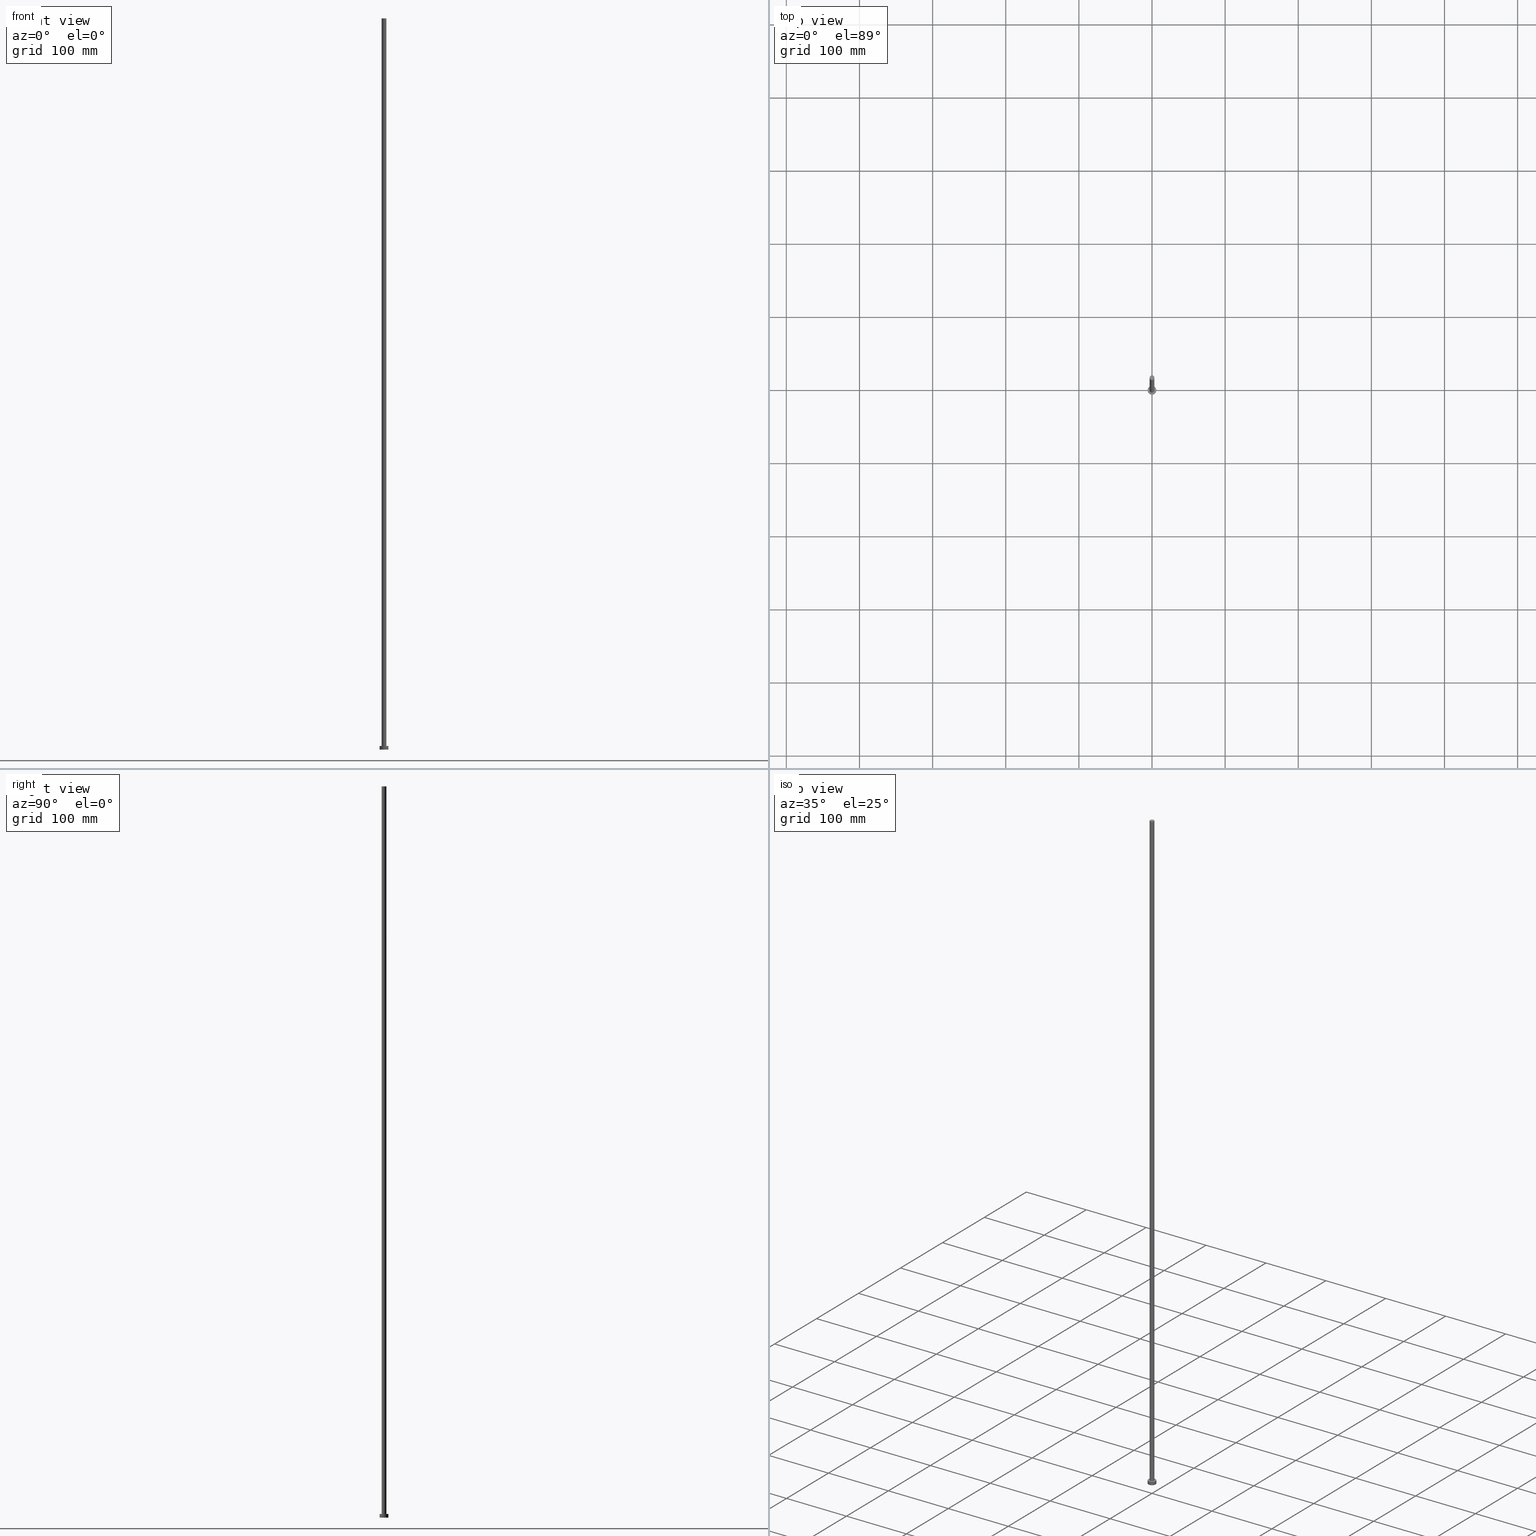
[diagram: canonical four-view strip — front | top / right | iso, engineering-drawing reading convention]
A machine part, canonical four-view strip (front | top / right | iso — engineering-drawing reading convention). The complete STEP part file that produces these views, byte-faithful:
ISO-10303-21;
HEADER;
FILE_DESCRIPTION (( 'STEP AP203' ),
    '1' );
FILE_NAME ('68aa.STEP',
    '2023-02-12T12:06:33',
    ( '' ),
    ( '' ),
    'SwSTEP 2.0',
    'SolidWorks 2019',
    '' );
FILE_SCHEMA (( 'CONFIG_CONTROL_DESIGN' ));
ENDSEC;

DATA;
#1 = DATE_TIME_ROLE ( 'classification_date' ) ;
#2 = CARTESIAN_POINT ( 'NONE',  ( 6.000000000000000888, 7.347880794884120722E-16, 5.000000000000000000 ) ) ;
#3 = DIRECTION ( 'NONE',  ( -0.000000000000000000, -0.000000000000000000, -1.000000000000000000 ) ) ;
#4 = LOCAL_TIME ( 13, 6, 33.00000000000000000, #201 ) ;
#5 = CC_DESIGN_PERSON_AND_ORGANIZATION_ASSIGNMENT ( #87, #42, ( #112 ) ) ;
#6 = AXIS2_PLACEMENT_3D ( 'NONE', #216, #17, #19 ) ;
#7 = CALENDAR_DATE ( 2023, 12, 2 ) ;
#8 = AXIS2_PLACEMENT_3D ( 'NONE', #211, #9, #97 ) ;
#9 = DIRECTION ( 'NONE',  ( 0.000000000000000000, 0.000000000000000000, 1.000000000000000000 ) ) ;
#10 = DIRECTION ( 'NONE',  ( 0.000000000000000000, 0.000000000000000000, 1.000000000000000000 ) ) ;
#11 = FACE_OUTER_BOUND ( 'NONE', #194, .T. ) ;
#12 = ORIENTED_EDGE ( 'NONE', *, *, #117, .T. ) ;
#13 = CIRCLE ( 'NONE', #45, 3.250000000000000444 ) ;
#14 = CARTESIAN_POINT ( 'NONE',  ( 0.000000000000000000, 0.000000000000000000, 5.000000000000000000 ) ) ;
#15 = DESIGN_CONTEXT ( 'detailed design', #46, 'design' ) ;
#16 = LINE ( 'NONE', #80, #226 ) ;
#17 = DIRECTION ( 'NONE',  ( 0.000000000000000000, 0.000000000000000000, 1.000000000000000000 ) ) ;
#18 = APPLICATION_PROTOCOL_DEFINITION ( 'international standard', 'config_control_design', 1994, #46 ) ;
#19 = DIRECTION ( 'NONE',  ( 1.000000000000000000, 0.000000000000000000, 0.000000000000000000 ) ) ;
#20 = PERSON_AND_ORGANIZATION ( #206, #244 ) ;
#21 = CARTESIAN_POINT ( 'NONE',  ( -3.250000000000000444, 0.000000000000000000, 1000.000000000000000 ) ) ;
#22 = PERSON_AND_ORGANIZATION_ROLE ( 'design_owner' ) ;
#23 = AXIS2_PLACEMENT_3D ( 'NONE', #255, #181, #62 ) ;
#24 =( GEOMETRIC_REPRESENTATION_CONTEXT ( 3 ) GLOBAL_UNCERTAINTY_ASSIGNED_CONTEXT ( ( #153 ) ) GLOBAL_UNIT_ASSIGNED_CONTEXT ( ( #241, #224, #222 ) ) REPRESENTATION_CONTEXT ( 'NONE', 'WORKASPACE' ) );
#25 = APPROVAL_DATE_TIME ( #83, #246 ) ;
#26 = ADVANCED_FACE ( 'NONE', ( #114 ), #76, .T. ) ;
#27 = SECURITY_CLASSIFICATION ( '', '', #144 ) ;
#28 = ORIENTED_EDGE ( 'NONE', *, *, #235, .F. ) ;
#29 = CIRCLE ( 'NONE', #123, 3.250000000000000444 ) ;
#30 = VERTEX_POINT ( 'NONE', #31 ) ;
#31 = CARTESIAN_POINT ( 'NONE',  ( -3.250000000000000444, 0.000000000000000000, 5.000000000000000000 ) ) ;
#32 = ORIENTED_EDGE ( 'NONE', *, *, #117, .F. ) ;
#33 = ORIENTED_EDGE ( 'NONE', *, *, #155, .F. ) ;
#34 = EDGE_LOOP ( 'NONE', ( #172, #231, #197, #47 ) ) ;
#35 = CARTESIAN_POINT ( 'NONE',  ( 6.000000000000000888, 7.347880794884120722E-16, 5.000000000000000000 ) ) ;
#36 = LINE ( 'NONE', #121, #173 ) ;
#37 = CARTESIAN_POINT ( 'NONE',  ( 3.250000000000000444, 3.980102097228897245E-16, 5.000000000000000000 ) ) ;
#38 = ADVANCED_FACE ( 'NONE', ( #11 ), #110, .T. ) ;
#39 = DATE_AND_TIME ( #140, #134 ) ;
#40 = FACE_BOUND ( 'NONE', #53, .T. ) ;
#41 = ORIENTED_EDGE ( 'NONE', *, *, #227, .T. ) ;
#42 = PERSON_AND_ORGANIZATION_ROLE ( 'creator' ) ;
#43 = LOCAL_TIME ( 13, 6, 33.00000000000000000, #63 ) ;
#44 = EDGE_CURVE ( 'NONE', #213, #151, #200, .T. ) ;
#45 = AXIS2_PLACEMENT_3D ( 'NONE', #78, #234, #177 ) ;
#46 = APPLICATION_CONTEXT ( 'configuration controlled 3d designs of mechanical parts and assemblies' ) ;
#47 = ORIENTED_EDGE ( 'NONE', *, *, #188, .T. ) ;
#48 = AXIS2_PLACEMENT_3D ( 'NONE', #154, #108, #247 ) ;
#49 = ORIENTED_EDGE ( 'NONE', *, *, #70, .F. ) ;
#50 = ORIENTED_EDGE ( 'NONE', *, *, #164, .F. ) ;
#51 = ORIENTED_EDGE ( 'NONE', *, *, #164, .T. ) ;
#52 = APPROVAL ( #122, 'NEUR�EN�' ) ;
#53 = EDGE_LOOP ( 'NONE', ( #171, #92 ) ) ;
#54 = CLOSED_SHELL ( 'NONE', ( #93, #254, #38, #210, #193, #137, #26 ) ) ;
#55 = AXIS2_PLACEMENT_3D ( 'NONE', #204, #119, #221 ) ;
#56 = VERTEX_POINT ( 'NONE', #192 ) ;
#57 = CC_DESIGN_SECURITY_CLASSIFICATION ( #27, ( #168 ) ) ;
#58 = FACE_OUTER_BOUND ( 'NONE', #74, .T. ) ;
#59 = CARTESIAN_POINT ( 'NONE',  ( 3.250000000000000444, 3.980102097228897245E-16, 1000.000000000000000 ) ) ;
#60 = CC_DESIGN_PERSON_AND_ORGANIZATION_ASSIGNMENT ( #163, #187, ( #168 ) ) ;
#61 = CARTESIAN_POINT ( 'NONE',  ( 0.000000000000000000, 0.000000000000000000, 0.000000000000000000 ) ) ;
#62 = DIRECTION ( 'NONE',  ( -1.000000000000000000, 0.000000000000000000, 0.000000000000000000 ) ) ;
#63 = COORDINATED_UNIVERSAL_TIME_OFFSET ( 1, 0, .AHEAD. ) ;
#64 = PRODUCT_DEFINITION_SHAPE ( 'NONE', 'NONE',  #112 ) ;
#65 = APPROVAL_ROLE ( '' ) ;
#66 = EDGE_CURVE ( 'NONE', #205, #248, #29, .T. ) ;
#67 = COORDINATED_UNIVERSAL_TIME_OFFSET ( 1, 0, .AHEAD. ) ;
#68 = CIRCLE ( 'NONE', #72, 6.000000000000000888 ) ;
#69 = PERSON_AND_ORGANIZATION ( #206, #244 ) ;
#70 = EDGE_CURVE ( 'NONE', #151, #213, #189, .T. ) ;
#71 = CARTESIAN_POINT ( 'NONE',  ( 0.000000000000000000, 0.000000000000000000, 1000.000000000000000 ) ) ;
#72 = AXIS2_PLACEMENT_3D ( 'NONE', #103, #218, #158 ) ;
#73 = AXIS2_PLACEMENT_3D ( 'NONE', #237, #143, #223 ) ;
#74 = EDGE_LOOP ( 'NONE', ( #229, #32 ) ) ;
#75 = ORIENTED_EDGE ( 'NONE', *, *, #44, .F. ) ;
#76 = PLANE ( 'NONE',  #48 ) ;
#77 = APPLICATION_CONTEXT ( 'configuration controlled 3d designs of mechanical parts and assemblies' ) ;
#78 = CARTESIAN_POINT ( 'NONE',  ( 0.000000000000000000, 0.000000000000000000, 1000.000000000000000 ) ) ;
#79 = CIRCLE ( 'NONE', #166, 3.250000000000000444 ) ;
#80 = CARTESIAN_POINT ( 'NONE',  ( 3.250000000000000444, 3.980102097228897245E-16, 1000.000000000000000 ) ) ;
#81 = MECHANICAL_CONTEXT ( 'NONE', #77, 'mechanical' ) ;
#82 = LINE ( 'NONE', #115, #186 ) ;
#83 = DATE_AND_TIME ( #7, #150 ) ;
#84 = CARTESIAN_POINT ( 'NONE',  ( -6.000000000000000888, 0.000000000000000000, 5.000000000000000000 ) ) ;
#85 = CC_DESIGN_APPROVAL ( #109, ( #27 ) ) ;
#86 = DIRECTION ( 'NONE',  ( 0.000000000000000000, 0.000000000000000000, 1.000000000000000000 ) ) ;
#87 = PERSON_AND_ORGANIZATION ( #206, #244 ) ;
#88 = PERSON_AND_ORGANIZATION ( #206, #244 ) ;
#89 = AXIS2_PLACEMENT_3D ( 'NONE', #195, #233, #135 ) ;
#90 = APPROVAL_PERSON_ORGANIZATION ( #88, #52, #125 ) ;
#91 = CC_DESIGN_PERSON_AND_ORGANIZATION_ASSIGNMENT ( #20, #145, ( #27 ) ) ;
#92 = ORIENTED_EDGE ( 'NONE', *, *, #101, .F. ) ;
#93 = ADVANCED_FACE ( 'NONE', ( #230 ), #131, .T. ) ;
#94 = CC_DESIGN_PERSON_AND_ORGANIZATION_ASSIGNMENT ( #69, #22, ( #184 ) ) ;
#95 = DIRECTION ( 'NONE',  ( 0.000000000000000000, 0.000000000000000000, 1.000000000000000000 ) ) ;
#96 = EDGE_LOOP ( 'NONE', ( #113, #136 ) ) ;
#97 = DIRECTION ( 'NONE',  ( 1.000000000000000000, 0.000000000000000000, 0.000000000000000000 ) ) ;
#98 = ORIENTED_EDGE ( 'NONE', *, *, #66, .T. ) ;
#99 = LINE ( 'NONE', #2, #215 ) ;
#100 = DIRECTION ( 'NONE',  ( -0.000000000000000000, -0.000000000000000000, -1.000000000000000000 ) ) ;
#101 = EDGE_CURVE ( 'NONE', #147, #30, #79, .T. ) ;
#102 = CALENDAR_DATE ( 2023, 12, 2 ) ;
#103 = CARTESIAN_POINT ( 'NONE',  ( 0.000000000000000000, 0.000000000000000000, 0.000000000000000000 ) ) ;
#104 = DATE_AND_TIME ( #102, #196 ) ;
#105 = FACE_OUTER_BOUND ( 'NONE', #96, .T. ) ;
#106 = APPLICATION_PROTOCOL_DEFINITION ( 'international standard', 'config_control_design', 1994, #77 ) ;
#107 = DIRECTION ( 'NONE',  ( 1.000000000000000000, 0.000000000000000000, 0.000000000000000000 ) ) ;
#108 = DIRECTION ( 'NONE',  ( 0.000000000000000000, 0.000000000000000000, 1.000000000000000000 ) ) ;
#109 = APPROVAL ( #159, 'NEUR�EN�' ) ;
#110 = CYLINDRICAL_SURFACE ( 'NONE', #89, 6.000000000000000888 ) ;
#111 = ORIENTED_EDGE ( 'NONE', *, *, #101, .T. ) ;
#112 = PRODUCT_DEFINITION ( 'NEZN�M�', '', #168, #15 ) ;
#113 = ORIENTED_EDGE ( 'NONE', *, *, #70, .T. ) ;
#114 = FACE_OUTER_BOUND ( 'NONE', #190, .T. ) ;
#115 = CARTESIAN_POINT ( 'NONE',  ( -6.000000000000000888, 0.000000000000000000, 5.000000000000000000 ) ) ;
#116 = CARTESIAN_POINT ( 'NONE',  ( 6.000000000000000888, 7.347880794884120722E-16, 0.000000000000000000 ) ) ;
#117 = EDGE_CURVE ( 'NONE', #170, #56, #68, .T. ) ;
#118 = ORIENTED_EDGE ( 'NONE', *, *, #228, .T. ) ;
#119 = DIRECTION ( 'NONE',  ( 0.000000000000000000, 0.000000000000000000, 1.000000000000000000 ) ) ;
#120 = COORDINATED_UNIVERSAL_TIME_OFFSET ( 1, 0, .AHEAD. ) ;
#121 = CARTESIAN_POINT ( 'NONE',  ( -3.250000000000000444, 0.000000000000000000, 1000.000000000000000 ) ) ;
#122 = APPROVAL_STATUS ( 'not_yet_approved' ) ;
#123 = AXIS2_PLACEMENT_3D ( 'NONE', #71, #10, #149 ) ;
#124 = AXIS2_PLACEMENT_3D ( 'NONE', #199, #202, #160 ) ;
#125 = APPROVAL_ROLE ( '' ) ;
#126 = APPROVAL_DATE_TIME ( #129, #109 ) ;
#127 = CALENDAR_DATE ( 2023, 12, 2 ) ;
#128 = AXIS2_PLACEMENT_3D ( 'NONE', #61, #86, #107 ) ;
#129 = DATE_AND_TIME ( #127, #43 ) ;
#130 = ORIENTED_EDGE ( 'NONE', *, *, #235, .T. ) ;
#131 = CYLINDRICAL_SURFACE ( 'NONE', #178, 3.250000000000000444 ) ;
#132 = EDGE_LOOP ( 'NONE', ( #50, #175, #111, #33 ) ) ;
#133 = DIRECTION ( 'NONE',  ( 1.000000000000000000, 0.000000000000000000, 0.000000000000000000 ) ) ;
#134 = LOCAL_TIME ( 13, 6, 33.00000000000000000, #67 ) ;
#135 = DIRECTION ( 'NONE',  ( -1.000000000000000000, 0.000000000000000000, 0.000000000000000000 ) ) ;
#136 = ORIENTED_EDGE ( 'NONE', *, *, #44, .T. ) ;
#137 = ADVANCED_FACE ( 'NONE', ( #156 ), #217, .T. ) ;
#138 = PLANE ( 'NONE',  #124 ) ;
#139 = FACE_OUTER_BOUND ( 'NONE', #252, .T. ) ;
#140 = CALENDAR_DATE ( 2023, 12, 2 ) ;
#141 = DIRECTION ( 'NONE',  ( -0.000000000000000000, -0.000000000000000000, -1.000000000000000000 ) ) ;
#142 = CC_DESIGN_APPROVAL ( #52, ( #168 ) ) ;
#143 = DIRECTION ( 'NONE',  ( -0.000000000000000000, -0.000000000000000000, -1.000000000000000000 ) ) ;
#144 = SECURITY_CLASSIFICATION_LEVEL ( 'unclassified' ) ;
#145 = PERSON_AND_ORGANIZATION_ROLE ( 'classification_officer' ) ;
#146 = EDGE_CURVE ( 'NONE', #248, #147, #16, .T. ) ;
#147 = VERTEX_POINT ( 'NONE', #37 ) ;
#148 = PRODUCT_RELATED_PRODUCT_CATEGORY ( 'detail', '', ( #184 ) ) ;
#149 = DIRECTION ( 'NONE',  ( 1.000000000000000000, 0.000000000000000000, 0.000000000000000000 ) ) ;
#150 = LOCAL_TIME ( 13, 6, 33.00000000000000000, #120 ) ;
#151 = VERTEX_POINT ( 'NONE', #84 ) ;
#152 = CARTESIAN_POINT ( 'NONE',  ( 0.000000000000000000, 0.000000000000000000, 5.000000000000000000 ) ) ;
#153 = UNCERTAINTY_MEASURE_WITH_UNIT (LENGTH_MEASURE( 1.000000000000000082E-05 ), #241, 'distance_accuracy_value', 'NONE');
#154 = CARTESIAN_POINT ( 'NONE',  ( 0.000000000000000000, 0.000000000000000000, 1000.000000000000000 ) ) ;
#155 = EDGE_CURVE ( 'NONE', #205, #30, #36, .T. ) ;
#156 = FACE_OUTER_BOUND ( 'NONE', #34, .T. ) ;
#157 = CARTESIAN_POINT ( 'NONE',  ( 0.000000000000000000, 0.000000000000000000, 5.000000000000000000 ) ) ;
#158 = DIRECTION ( 'NONE',  ( 1.000000000000000000, 0.000000000000000000, 0.000000000000000000 ) ) ;
#159 = APPROVAL_STATUS ( 'not_yet_approved' ) ;
#160 = DIRECTION ( 'NONE',  ( 1.000000000000000000, 0.000000000000000000, -0.000000000000000000 ) ) ;
#161 = PERSON_AND_ORGANIZATION ( #206, #244 ) ;
#162 = ADVANCED_BREP_SHAPE_REPRESENTATION ( '68aa', ( #220, #128 ), #24 ) ;
#163 = PERSON_AND_ORGANIZATION ( #206, #244 ) ;
#164 = EDGE_CURVE ( 'NONE', #248, #205, #13, .T. ) ;
#165 = DATE_AND_TIME ( #207, #4 ) ;
#166 = AXIS2_PLACEMENT_3D ( 'NONE', #152, #232, #214 ) ;
#167 = CIRCLE ( 'NONE', #55, 3.250000000000000444 ) ;
#168 = PRODUCT_DEFINITION_FORMATION_WITH_SPECIFIED_SOURCE ( 'LIBOVOLN�', '', #184, .NOT_KNOWN. ) ;
#169 = SHAPE_DEFINITION_REPRESENTATION ( #64, #162 ) ;
#170 = VERTEX_POINT ( 'NONE', #116 ) ;
#171 = ORIENTED_EDGE ( 'NONE', *, *, #188, .F. ) ;
#172 = ORIENTED_EDGE ( 'NONE', *, *, #146, .F. ) ;
#173 = VECTOR ( 'NONE', #3, 1000.000000000000000 ) ;
#174 = DIRECTION ( 'NONE',  ( -0.000000000000000000, -0.000000000000000000, -1.000000000000000000 ) ) ;
#175 = ORIENTED_EDGE ( 'NONE', *, *, #146, .T. ) ;
#176 = CC_DESIGN_DATE_AND_TIME_ASSIGNMENT ( #104, #1, ( #27 ) ) ;
#177 = DIRECTION ( 'NONE',  ( 1.000000000000000000, 0.000000000000000000, 0.000000000000000000 ) ) ;
#178 = AXIS2_PLACEMENT_3D ( 'NONE', #212, #174, #251 ) ;
#179 = CYLINDRICAL_SURFACE ( 'NONE', #73, 6.000000000000000888 ) ;
#180 = DATE_TIME_ROLE ( 'creation_date' ) ;
#181 = DIRECTION ( 'NONE',  ( -0.000000000000000000, -0.000000000000000000, -1.000000000000000000 ) ) ;
#182 = PERSON_AND_ORGANIZATION ( #206, #244 ) ;
#183 = PLANE ( 'NONE',  #243 ) ;
#184 = PRODUCT ( '68aa', '68aa', '', ( #81 ) ) ;
#185 = APPROVAL_STATUS ( 'not_yet_approved' ) ;
#186 = VECTOR ( 'NONE', #198, 1000.000000000000000 ) ;
#187 = PERSON_AND_ORGANIZATION_ROLE ( 'creator' ) ;
#188 = EDGE_CURVE ( 'NONE', #30, #147, #167, .T. ) ;
#189 = CIRCLE ( 'NONE', #191, 6.000000000000000888 ) ;
#190 = EDGE_LOOP ( 'NONE', ( #98, #51 ) ) ;
#191 = AXIS2_PLACEMENT_3D ( 'NONE', #14, #95, #133 ) ;
#192 = CARTESIAN_POINT ( 'NONE',  ( -6.000000000000000888, 0.000000000000000000, 0.000000000000000000 ) ) ;
#193 = ADVANCED_FACE ( 'NONE', ( #58 ), #138, .F. ) ;
#194 = EDGE_LOOP ( 'NONE', ( #28, #49, #118, #41 ) ) ;
#195 = CARTESIAN_POINT ( 'NONE',  ( 0.000000000000000000, 0.000000000000000000, 5.000000000000000000 ) ) ;
#196 = LOCAL_TIME ( 13, 6, 33.00000000000000000, #208 ) ;
#197 = ORIENTED_EDGE ( 'NONE', *, *, #155, .T. ) ;
#198 = DIRECTION ( 'NONE',  ( -0.000000000000000000, -0.000000000000000000, -1.000000000000000000 ) ) ;
#199 = CARTESIAN_POINT ( 'NONE',  ( 0.000000000000000000, 0.000000000000000000, 0.000000000000000000 ) ) ;
#200 = CIRCLE ( 'NONE', #8, 6.000000000000000888 ) ;
#201 = COORDINATED_UNIVERSAL_TIME_OFFSET ( 1, 0, .AHEAD. ) ;
#202 = DIRECTION ( 'NONE',  ( 0.000000000000000000, 0.000000000000000000, 1.000000000000000000 ) ) ;
#203 = PERSON_AND_ORGANIZATION ( #206, #244 ) ;
#204 = CARTESIAN_POINT ( 'NONE',  ( 0.000000000000000000, 0.000000000000000000, 5.000000000000000000 ) ) ;
#205 = VERTEX_POINT ( 'NONE', #21 ) ;
#206 = PERSON ( 'NEUR�EN�', 'NEUR�EN�', 'NEUR�EN�', ('NEUR�EN�'), ('NEUR�EN�'), ('NEUR�EN�') ) ;
#207 = CALENDAR_DATE ( 2023, 12, 2 ) ;
#208 = COORDINATED_UNIVERSAL_TIME_OFFSET ( 1, 0, .AHEAD. ) ;
#209 = CC_DESIGN_APPROVAL ( #246, ( #112 ) ) ;
#210 = ADVANCED_FACE ( 'NONE', ( #40, #105 ), #183, .T. ) ;
#211 = CARTESIAN_POINT ( 'NONE',  ( 0.000000000000000000, 0.000000000000000000, 5.000000000000000000 ) ) ;
#212 = CARTESIAN_POINT ( 'NONE',  ( 0.000000000000000000, 0.000000000000000000, 1000.000000000000000 ) ) ;
#213 = VERTEX_POINT ( 'NONE', #35 ) ;
#214 = DIRECTION ( 'NONE',  ( 1.000000000000000000, 0.000000000000000000, 0.000000000000000000 ) ) ;
#215 = VECTOR ( 'NONE', #100, 1000.000000000000000 ) ;
#216 = CARTESIAN_POINT ( 'NONE',  ( 0.000000000000000000, 0.000000000000000000, 0.000000000000000000 ) ) ;
#217 = CYLINDRICAL_SURFACE ( 'NONE', #23, 3.250000000000000444 ) ;
#218 = DIRECTION ( 'NONE',  ( 0.000000000000000000, 0.000000000000000000, 1.000000000000000000 ) ) ;
#219 = APPROVAL_DATE_TIME ( #165, #52 ) ;
#220 = MANIFOLD_SOLID_BREP ( 'P�idat vysunut�m3', #54 ) ;
#221 = DIRECTION ( 'NONE',  ( 1.000000000000000000, 0.000000000000000000, 0.000000000000000000 ) ) ;
#222 =( NAMED_UNIT ( * ) SI_UNIT ( $, .STERADIAN. ) SOLID_ANGLE_UNIT ( ) );
#223 = DIRECTION ( 'NONE',  ( -1.000000000000000000, 0.000000000000000000, 0.000000000000000000 ) ) ;
#224 =( NAMED_UNIT ( * ) PLANE_ANGLE_UNIT ( ) SI_UNIT ( $, .RADIAN. ) );
#225 = CC_DESIGN_PERSON_AND_ORGANIZATION_ASSIGNMENT ( #203, #242, ( #168 ) ) ;
#226 = VECTOR ( 'NONE', #141, 1000.000000000000000 ) ;
#227 = EDGE_CURVE ( 'NONE', #56, #170, #239, .T. ) ;
#228 = EDGE_CURVE ( 'NONE', #151, #56, #82, .T. ) ;
#229 = ORIENTED_EDGE ( 'NONE', *, *, #227, .F. ) ;
#230 = FACE_OUTER_BOUND ( 'NONE', #132, .T. ) ;
#231 = ORIENTED_EDGE ( 'NONE', *, *, #66, .F. ) ;
#232 = DIRECTION ( 'NONE',  ( 0.000000000000000000, 0.000000000000000000, 1.000000000000000000 ) ) ;
#233 = DIRECTION ( 'NONE',  ( -0.000000000000000000, -0.000000000000000000, -1.000000000000000000 ) ) ;
#234 = DIRECTION ( 'NONE',  ( 0.000000000000000000, 0.000000000000000000, 1.000000000000000000 ) ) ;
#235 = EDGE_CURVE ( 'NONE', #213, #170, #99, .T. ) ;
#236 = DIRECTION ( 'NONE',  ( 0.000000000000000000, 0.000000000000000000, 1.000000000000000000 ) ) ;
#237 = CARTESIAN_POINT ( 'NONE',  ( 0.000000000000000000, 0.000000000000000000, 5.000000000000000000 ) ) ;
#238 = APPROVAL_ROLE ( '' ) ;
#239 = CIRCLE ( 'NONE', #6, 6.000000000000000888 ) ;
#240 = CC_DESIGN_DATE_AND_TIME_ASSIGNMENT ( #39, #180, ( #112 ) ) ;
#241 =( LENGTH_UNIT ( ) NAMED_UNIT ( * ) SI_UNIT ( .MILLI., .METRE. ) );
#242 = PERSON_AND_ORGANIZATION_ROLE ( 'design_supplier' ) ;
#243 = AXIS2_PLACEMENT_3D ( 'NONE', #157, #236, #253 ) ;
#244 = ORGANIZATION ( 'NEUR�EN�', 'NEUR�EN�', '' ) ;
#245 = APPROVAL_PERSON_ORGANIZATION ( #182, #109, #238 ) ;
#246 = APPROVAL ( #185, 'NEUR�EN�' ) ;
#247 = DIRECTION ( 'NONE',  ( 1.000000000000000000, 0.000000000000000000, -0.000000000000000000 ) ) ;
#248 = VERTEX_POINT ( 'NONE', #59 ) ;
#249 = ORIENTED_EDGE ( 'NONE', *, *, #228, .F. ) ;
#250 = APPROVAL_PERSON_ORGANIZATION ( #161, #246, #65 ) ;
#251 = DIRECTION ( 'NONE',  ( -1.000000000000000000, 0.000000000000000000, 0.000000000000000000 ) ) ;
#252 = EDGE_LOOP ( 'NONE', ( #75, #130, #12, #249 ) ) ;
#253 = DIRECTION ( 'NONE',  ( 1.000000000000000000, 0.000000000000000000, -0.000000000000000000 ) ) ;
#254 = ADVANCED_FACE ( 'NONE', ( #139 ), #179, .T. ) ;
#255 = CARTESIAN_POINT ( 'NONE',  ( 0.000000000000000000, 0.000000000000000000, 1000.000000000000000 ) ) ;
ENDSEC;
END-ISO-10303-21;
